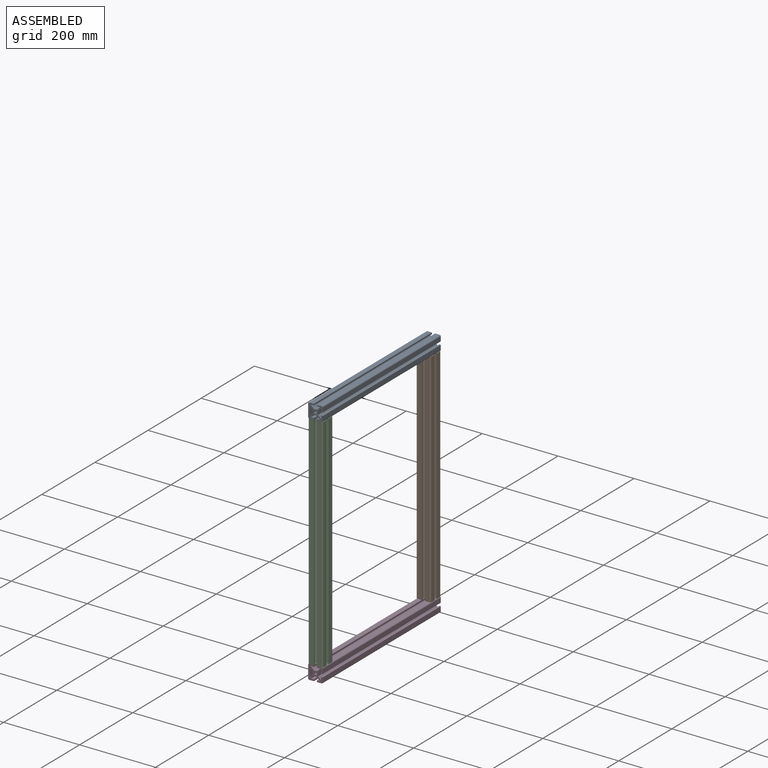
[diagram: assembled view]
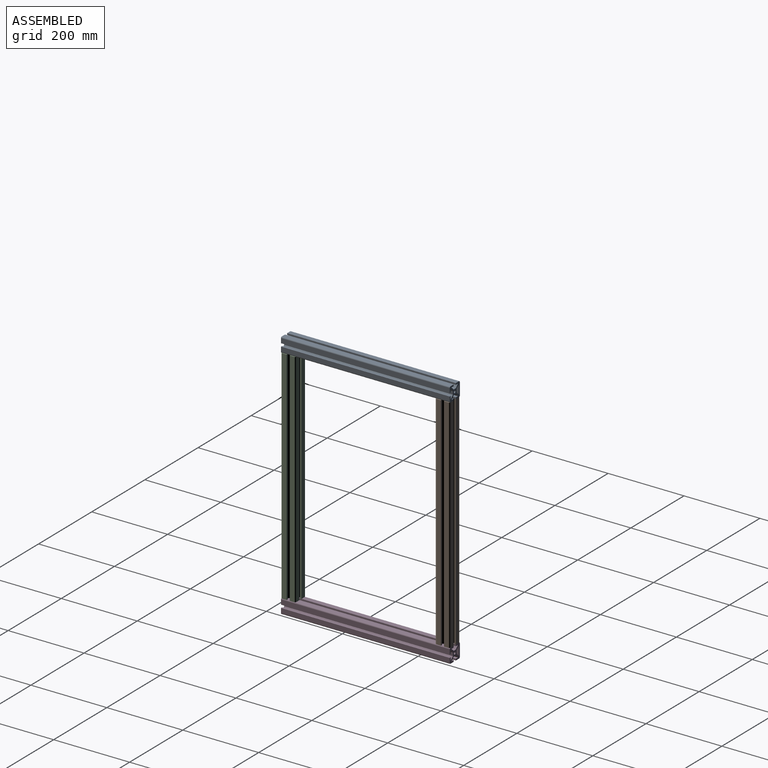
[diagram: assembled view, second angle]
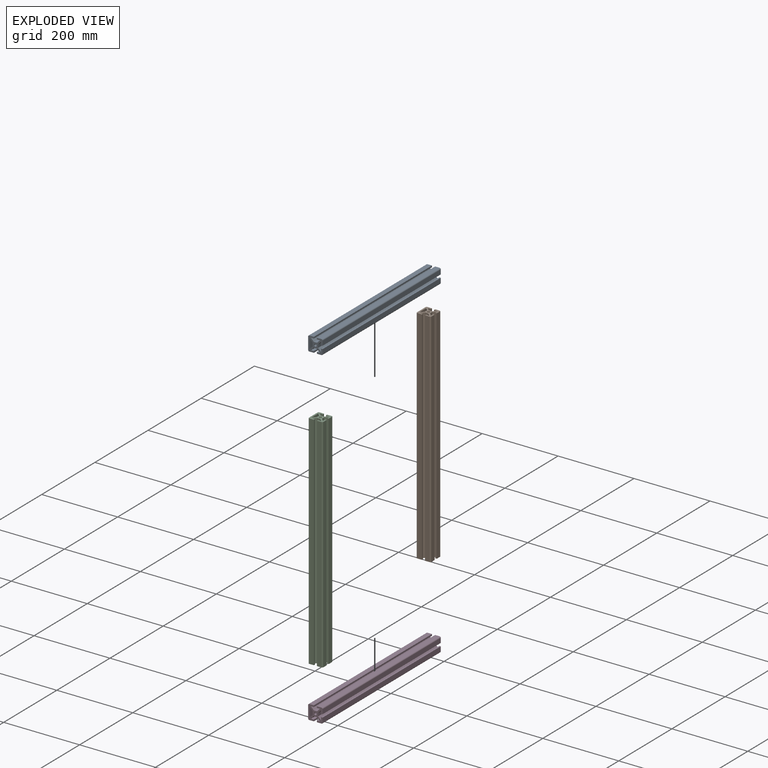
[diagram: exploded view]
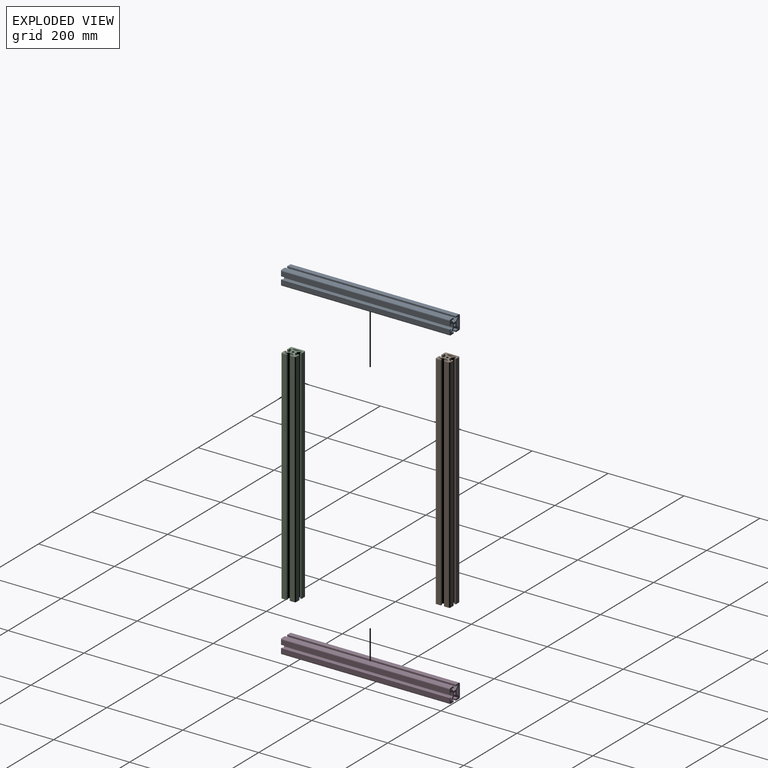
[diagram: exploded view, second angle]
ASSEMBLY  parts=4 mates=9
PART A: 39 faces, bbox 38.1x38.1x444.5 mm
  f0: plane 444.5x11.94mm, normal (1,0,0), area 5306.4mm2, adj f1,f2,f3,f38
  f1: plane 444.5x4.17mm, normal (0,-1,0), area 1851.6mm2, adj f0,f2,f4,f38
  f2: plane 38.1x38.1mm, normal (0,0,1), area 803.4mm2, adj f0,f1,f3,f4,f5,f6,f7,f8
  f3: cylinder r=3.05mm len=444.5mm, axis (0,0,1), area 2128.2mm2, adj f0,f2,f32,f38
  f4: plane 444.5x7.95mm, normal (-1,0,0), area 3532.3mm2, adj f1,f2,f13,f38
  f5: plane 444.5x7.77mm, normal (-0.71,0.71,0), area 4885.9mm2, adj f2,f14,f33,f38
  f6: plane 444.5x4.17mm, normal (-1,0,0), area 1851.6mm2, adj f2,f24,f28,f38
  f7: cylinder r=3.26mm len=444.5mm, axis (0,0,1), area 9115.7mm2, adj f2,f38
  f8: plane 444.5x7.95mm, normal (-1,0,0), area 3532.3mm2, adj f2,f25,f31,f38
  f9: plane 444.5x7.95mm, normal (0,-1,0), area 3532.3mm2, adj f2,f36,f37,f38
  f10: plane 444.5x7.95mm, normal (0,1,0), area 3532.3mm2, adj f2,f11,f18,f38
  f11: plane 444.5x7.77mm, normal (0.71,-0.71,0), area 4885.9mm2, adj f2,f10,f19,f38
  f12: cylinder r=3.05mm len=444.5mm, axis (0,0,1), area 2128.2mm2, adj f2,f24,f26,f38
  f13: plane 444.5x7.77mm, normal (0.71,-0.71,0), area 4885.9mm2, adj f2,f4,f20,f38
  f14: plane 444.5x7.95mm, normal (0,-1,0), area 3532.3mm2, adj f2,f5,f21,f38
  f15: plane 444.5x7.77mm, normal (-0.71,0.71,0), area 4885.9mm2, adj f2,f34,f35,f38
  f16: plane 444.5x11.94mm, normal (0,1,0), area 5306.4mm2, adj f2,f22,f37,f38
  f17: plane 444.5x32mm, normal (-1,0,0), area 14225.8mm2, adj f2,f22,f27,f38
  f18: plane 444.5x4.17mm, normal (1,0,0), area 1851.6mm2, adj f2,f10,f29,f38
  f19: plane 444.5x8.48mm, normal (0,-1,0), area 3767.9mm2, adj f2,f11,f23,f38
  f20: plane 444.5x8.48mm, normal (1,0,0), area 3767.9mm2, adj f2,f13,f31,f38
  f21: plane 444.5x4.17mm, normal (-1,0,0), area 1851.6mm2, adj f2,f14,f32,f38
  f22: cylinder r=3.05mm len=444.5mm, axis (0,0,1), area 2128.2mm2, adj f2,f16,f17,f38
  f23: plane 444.5x7.77mm, normal (-0.71,-0.71,0), area 4885.9mm2, adj f2,f19,f28,f38
  f24: plane 444.5x11.94mm, normal (0,-1,0), area 5306.4mm2, adj f2,f6,f12,f38
  f25: plane 444.5x4.17mm, normal (0,1,0), area 1851.6mm2, adj f2,f8,f26,f38
  f26: plane 444.5x11.94mm, normal (1,0,0), area 5306.4mm2, adj f2,f12,f25,f38
  f27: cylinder r=3.05mm len=444.5mm, axis (0,0,1), area 2128.2mm2, adj f2,f17,f29,f38
  f28: plane 444.5x7.95mm, normal (0,1,0), area 3532.3mm2, adj f2,f6,f23,f38
  f29: plane 444.5x11.94mm, normal (0,-1,0), area 5306.4mm2, adj f2,f18,f27,f38
  f30: plane 444.5x7.77mm, normal (-0.71,-0.71,0), area 4885.9mm2, adj f2,f34,f35,f38
  f31: plane 444.5x7.77mm, normal (0.71,0.71,0), area 4885.9mm2, adj f2,f8,f20,f38
  f32: plane 444.5x11.94mm, normal (0,1,0), area 5306.4mm2, adj f2,f3,f21,f38
  f33: plane 444.5x8.48mm, normal (0,1,0), area 3767.9mm2, adj f2,f5,f36,f38
  f34: plane 444.5x24.02mm, normal (1,0,0), area 10677.5mm2, adj f2,f15,f30,f38
  f35: plane 444.5x8.48mm, normal (-1,0,0), area 3767.9mm2, adj f2,f15,f30,f38
  f36: plane 444.5x7.77mm, normal (0.71,0.71,0), area 4885.9mm2, adj f2,f9,f33,f38
  f37: plane 444.5x4.17mm, normal (1,0,0), area 1851.6mm2, adj f2,f9,f16,f38
  f38: plane 38.1x38.1mm, normal (0,0,-1), area 803.4mm2, adj f0,f1,f3,f4,f5,f6,f7,f8
PART B: 39 faces, bbox 38.1x38.1x584.2 mm
  f0: plane 584.2x11.94mm, normal (1,0,0), area 6974.2mm2, adj f1,f2,f3,f38
  f1: plane 584.2x4.17mm, normal (0,-1,0), area 2433.5mm2, adj f0,f2,f4,f38
  f2: plane 38.1x38.1mm, normal (0,0,1), area 803.4mm2, adj f0,f1,f3,f4,f5,f6,f7,f8
  f3: cylinder r=3.05mm len=584.2mm, axis (0,0,1), area 2797mm2, adj f0,f2,f32,f38
  f4: plane 584.2x7.95mm, normal (-1,0,0), area 4642.5mm2, adj f1,f2,f13,f38
  f5: plane 584.2x7.77mm, normal (-0.71,0.71,0), area 6421.4mm2, adj f2,f14,f33,f38
  f6: plane 584.2x4.17mm, normal (-1,0,0), area 2433.5mm2, adj f2,f24,f28,f38
  f7: cylinder r=3.26mm len=584.2mm, axis (0,0,1), area 11980.6mm2, adj f2,f38
  f8: plane 584.2x7.95mm, normal (-1,0,0), area 4642.5mm2, adj f2,f25,f31,f38
  f9: plane 584.2x7.95mm, normal (0,-1,0), area 4642.5mm2, adj f2,f36,f37,f38
  f10: plane 584.2x7.95mm, normal (0,1,0), area 4642.5mm2, adj f2,f11,f18,f38
  f11: plane 584.2x7.77mm, normal (0.71,-0.71,0), area 6421.4mm2, adj f2,f10,f19,f38
  f12: cylinder r=3.05mm len=584.2mm, axis (0,0,1), area 2797mm2, adj f2,f24,f26,f38
  f13: plane 584.2x7.77mm, normal (0.71,-0.71,0), area 6421.4mm2, adj f2,f4,f20,f38
  f14: plane 584.2x7.95mm, normal (0,-1,0), area 4642.5mm2, adj f2,f5,f21,f38
  f15: plane 584.2x7.77mm, normal (-0.71,0.71,0), area 6421.4mm2, adj f2,f34,f35,f38
  f16: plane 584.2x11.94mm, normal (0,1,0), area 6974.2mm2, adj f2,f22,f37,f38
  f17: plane 584.2x32mm, normal (-1,0,0), area 18696.7mm2, adj f2,f22,f27,f38
  f18: plane 584.2x4.17mm, normal (1,0,0), area 2433.5mm2, adj f2,f10,f29,f38
  f19: plane 584.2x8.48mm, normal (0,-1,0), area 4952.1mm2, adj f2,f11,f23,f38
  f20: plane 584.2x8.48mm, normal (1,0,0), area 4952.1mm2, adj f2,f13,f31,f38
  f21: plane 584.2x4.17mm, normal (-1,0,0), area 2433.5mm2, adj f2,f14,f32,f38
  f22: cylinder r=3.05mm len=584.2mm, axis (0,0,1), area 2797mm2, adj f2,f16,f17,f38
  f23: plane 584.2x7.77mm, normal (-0.71,-0.71,0), area 6421.4mm2, adj f2,f19,f28,f38
  f24: plane 584.2x11.94mm, normal (0,-1,0), area 6974.2mm2, adj f2,f6,f12,f38
  f25: plane 584.2x4.17mm, normal (0,1,0), area 2433.5mm2, adj f2,f8,f26,f38
  f26: plane 584.2x11.94mm, normal (1,0,0), area 6974.2mm2, adj f2,f12,f25,f38
  f27: cylinder r=3.05mm len=584.2mm, axis (0,0,1), area 2797mm2, adj f2,f17,f29,f38
  f28: plane 584.2x7.95mm, normal (0,1,0), area 4642.5mm2, adj f2,f6,f23,f38
  f29: plane 584.2x11.94mm, normal (0,-1,0), area 6974.2mm2, adj f2,f18,f27,f38
  f30: plane 584.2x7.77mm, normal (-0.71,-0.71,0), area 6421.4mm2, adj f2,f34,f35,f38
  f31: plane 584.2x7.77mm, normal (0.71,0.71,0), area 6421.4mm2, adj f2,f8,f20,f38
  f32: plane 584.2x11.94mm, normal (0,1,0), area 6974.2mm2, adj f2,f3,f21,f38
  f33: plane 584.2x8.48mm, normal (0,1,0), area 4952.1mm2, adj f2,f5,f36,f38
  f34: plane 584.2x24.02mm, normal (1,0,0), area 14033.3mm2, adj f2,f15,f30,f38
  f35: plane 584.2x8.48mm, normal (-1,0,0), area 4952.1mm2, adj f2,f15,f30,f38
  f36: plane 584.2x7.77mm, normal (0.71,0.71,0), area 6421.4mm2, adj f2,f9,f33,f38
  f37: plane 584.2x4.17mm, normal (1,0,0), area 2433.5mm2, adj f2,f9,f16,f38
  f38: plane 38.1x38.1mm, normal (0,0,-1), area 803.4mm2, adj f0,f1,f3,f4,f5,f6,f7,f8
PART C: same geometry as B
PART D: same geometry as A
PLACE A rot(axis=(1,0,0),90deg) t=(164.23,-433.04,385.25)mm
PLACE B t=(164.23,-7.59,366.2)mm
PLACE C t=(164.23,-413.99,366.2)mm
PLACE D rot(axis=(1,0,0),90deg) t=(164.23,-433.04,-237.05)mm
MATE planar A.f24 <-> C.f2  axis (0,0,-1) through (174.26,-210.79,366.2)mm
MATE planar D.f2 <-> C.f29  axis (0,-1,0) through (168.47,-433.04,-244.16)mm
MATE planar D.f17 <-> C.f17  axis (-1,0,0) through (145.18,-210.79,-237.05)mm
MATE planar B.f27 <-> D.f16  axis (0,0,-1) through (148.23,-23.59,-218)mm
MATE planar B.f17 <-> D.f17  axis (-1,0,0) through (145.18,-7.59,74.1)mm
MATE planar A.f2 <-> C.f24  axis (0,-1,0) through (163.52,-433.04,385.25)mm
MATE planar A.f17 <-> C.f17  axis (-1,0,0) through (145.18,-210.79,385.25)mm
MATE planar D.f16 <-> C.f38  axis (0,0,1) through (154.2,-210.79,-218)mm
MATE planar B.f16 <-> D.f38  axis (0,1,0) through (154.2,11.46,74.1)mm
